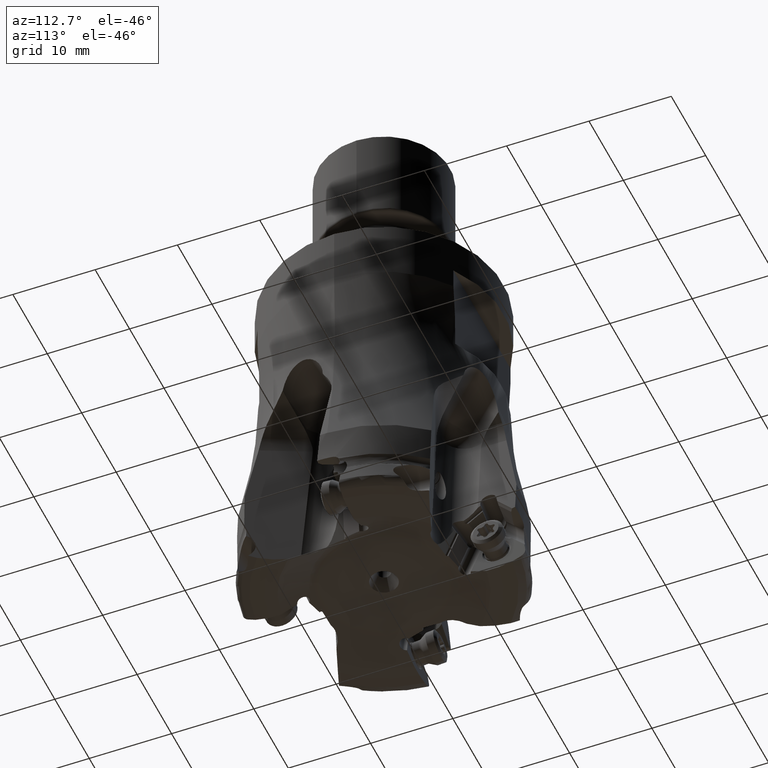
[diagram: clean part render]
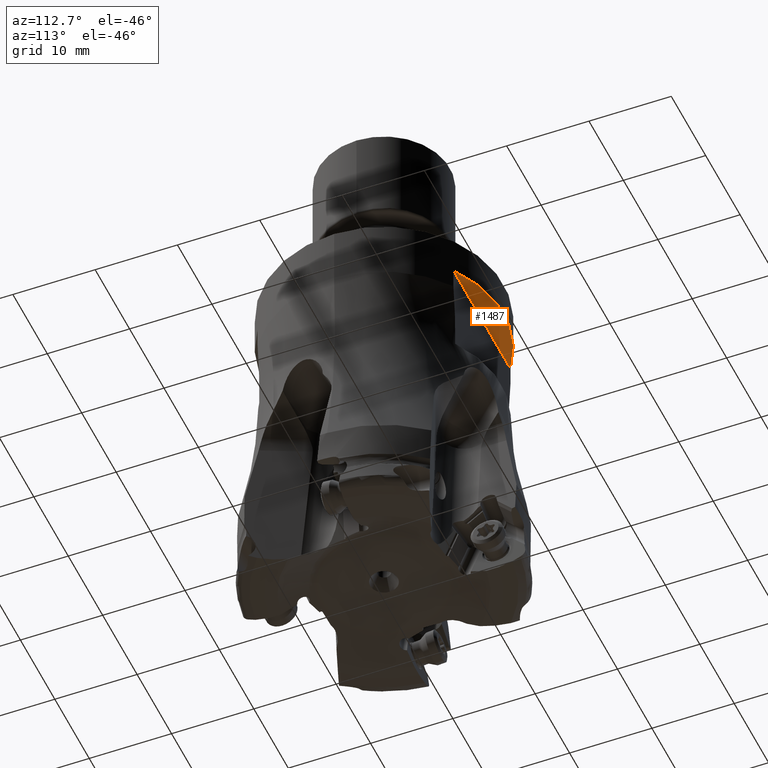
[diagram: same view with one face highlighted and labeled with its STEP entity id]
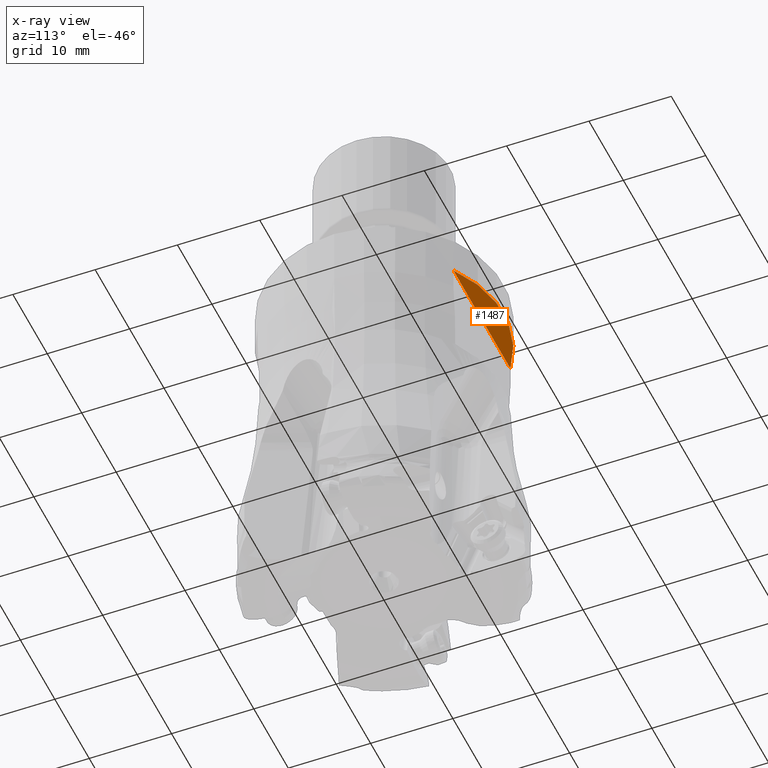
[diagram: x-ray of the same camera — body ghosted, the highlighted face saturated]
A machine part, auxiliary view. The second image highlights one B-rep face of the part: STEP entity #1487.
The next image is the same camera in x-ray: the body ghosted, the highlighted face saturated — about 0% of this face is hidden behind the body in this view.
In plain terms, the highlighted planar face has unit normal (0, 0, 1).
Its self-contained STEP definition (entity closure, byte-faithful):
#234=PLANE('',#9651);
#686=LINE('',#17816,#1044);
#1044=VECTOR('',#11251,1.);
#1487=ADVANCED_FACE('',(#2048),#234,.F.);
#2048=FACE_OUTER_BOUND('',#2555,.T.);
#2555=EDGE_LOOP('',(#4472,#4473));
#3062=CIRCLE('',#9647,14.5);
#4472=ORIENTED_EDGE('',*,*,#7826,.F.);
#4473=ORIENTED_EDGE('',*,*,#7824,.F.);
#6700=VERTEX_POINT('',#17811);
#6701=VERTEX_POINT('',#17813);
#7824=EDGE_CURVE('',#6700,#6701,#3062,.T.);
#7826=EDGE_CURVE('',#6701,#6700,#686,.T.);
#9647=AXIS2_PLACEMENT_3D('',#17812,#11246,#11247);
#9651=AXIS2_PLACEMENT_3D('',#17820,#11257,#11258);
#11246=DIRECTION('',(0.,0.,1.));
#11247=DIRECTION('',(0.571374211785022,0.820689655172432,0.));
#11251=DIRECTION('',(1.,0.,0.));
#11257=DIRECTION('',(0.,0.,1.));
#11258=DIRECTION('',(0.,-1.,0.));
#17811=CARTESIAN_POINT('',(8.284926070883,11.9,-5.));
#17812=CARTESIAN_POINT('',(1.7763568394E-14,-1.499890428213E-14,-5.));
#17813=CARTESIAN_POINT('',(-8.284926070883,11.9,-5.));
#17816=CARTESIAN_POINT('',(-8.284926070883,11.9,-5.));
#17820=CARTESIAN_POINT('',(0.,13.19999990937,-5.));